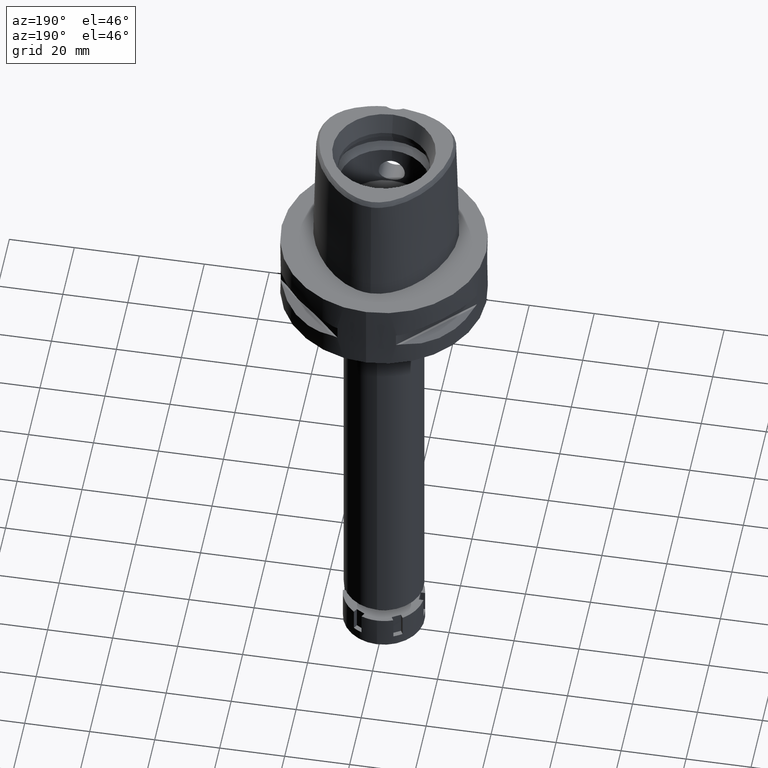
[diagram: clean part render]
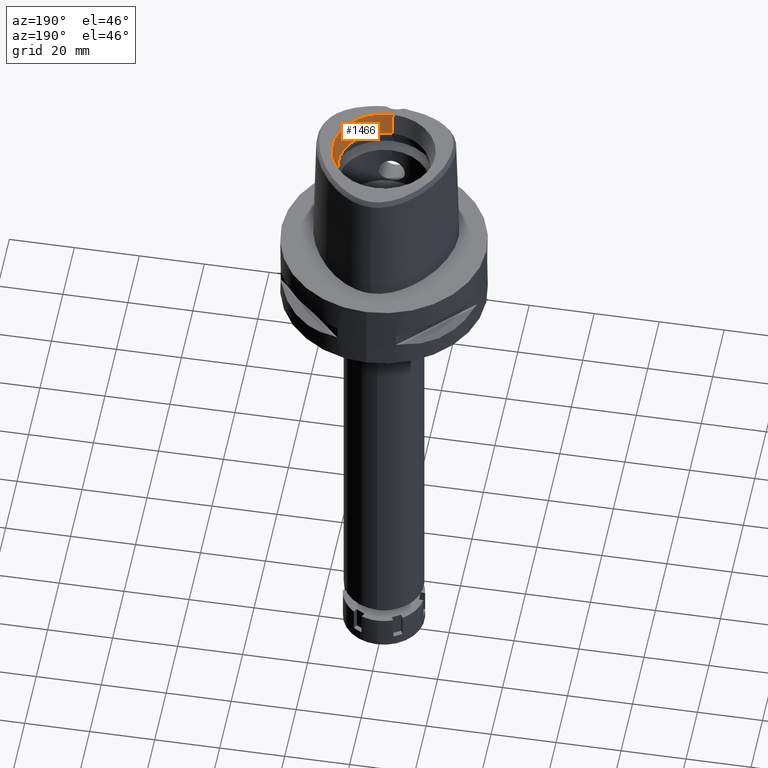
[diagram: same view with one face highlighted and labeled with its STEP entity id]
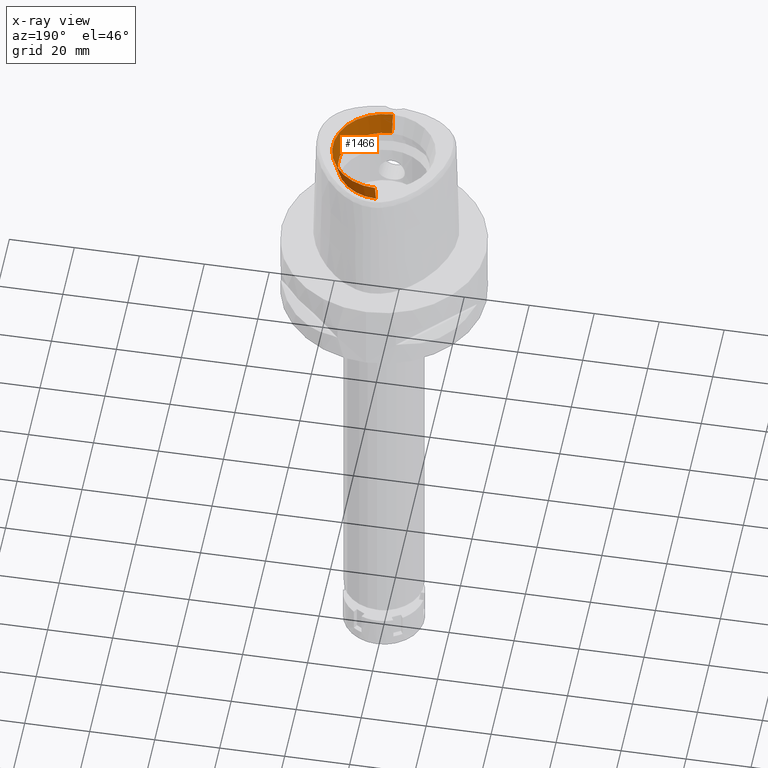
[diagram: x-ray of the same camera — body ghosted, the highlighted face saturated]
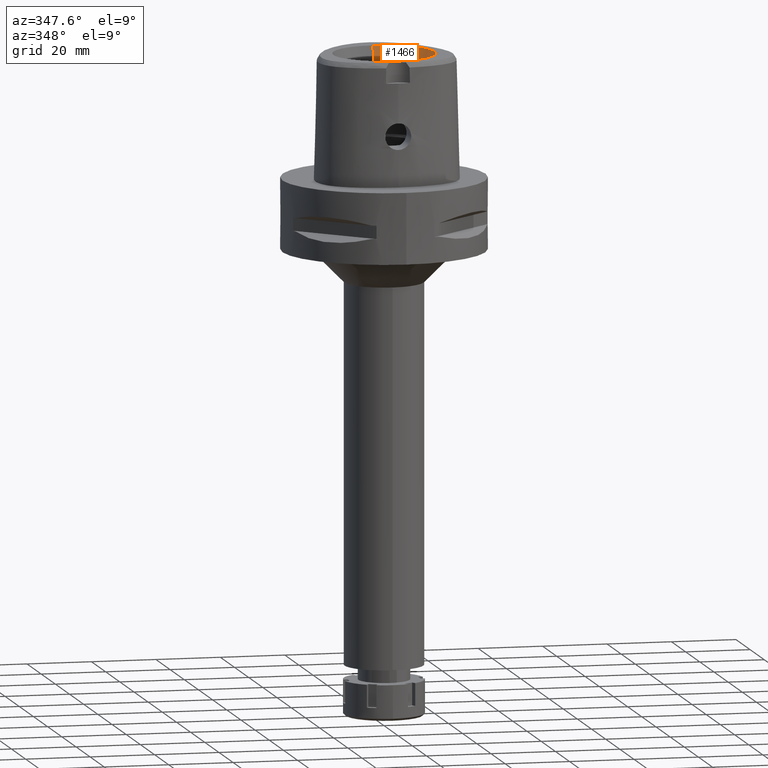
[diagram: same view with one face highlighted and labeled with its STEP entity id]
A machine part, auxiliary view. The second image highlights one B-rep face of the part: STEP entity #1466.
The next image is the same camera in x-ray: the body ghosted, the highlighted face saturated — about 0% of this face is hidden behind the body in this view.
A second angle (auxiliary view) of the same face is appended — the face is thin or edge-on in the first view.
In plain terms, the highlighted conical surface has half-angle 15 deg.
Its self-contained STEP definition (entity closure, byte-faithful):
#234 = DIRECTION ( 'NONE',  ( 0.0000000000000000000, 0.2588190451025869088, 0.9659258262890505486 ) ) ;
#410 = DIRECTION ( 'NONE',  ( 0.0000000000000000000, 0.0000000000000000000, 1.000000000000000000 ) ) ;
#458 = CARTESIAN_POINT ( 'NONE',  ( 0.0000000000000000000, 14.00000000000000000, 31.60000000000000142 ) ) ;
#563 = ORIENTED_EDGE ( 'NONE', *, *, #4878, .F. ) ;
#913 = ORIENTED_EDGE ( 'NONE', *, *, #4130, .T. ) ;
#1117 = CARTESIAN_POINT ( 'NONE',  ( 0.0000000000000000000, -14.00000000000000000, 31.60000000000000142 ) ) ;
#1186 = DIRECTION ( 'NONE',  ( 0.0000000000000000000, -1.000000000000000000, 0.0000000000000000000 ) ) ;
#1310 = VERTEX_POINT ( 'NONE', #2572 ) ;
#1466 = ADVANCED_FACE ( 'NONE', ( #3349 ), #3570, .F. ) ;
#1626 = CARTESIAN_POINT ( 'NONE',  ( 0.0000000000000000000, -14.00000000000000000, 31.60000000000000142 ) ) ;
#1667 = VECTOR ( 'NONE', #234, 1000.000000000000000 ) ;
#1857 = VECTOR ( 'NONE', #2872, 1000.000000000000000 ) ;
#1913 = LINE ( 'NONE', #4012, #1667 ) ;
#2087 = CARTESIAN_POINT ( 'NONE',  ( 0.0000000000000000000, 0.0000000000000000000, 31.60000000000000142 ) ) ;
#2102 = EDGE_CURVE ( 'NONE', #2381, #1310, #1913, .T. ) ;
#2381 = VERTEX_POINT ( 'NONE', #458 ) ;
#2505 = DIRECTION ( 'NONE',  ( 0.0000000000000000000, 0.0000000000000000000, 1.000000000000000000 ) ) ;
#2572 = CARTESIAN_POINT ( 'NONE',  ( 0.0000000000000000000, 15.71487483155999776, 38.00000000000000000 ) ) ;
#2598 = CIRCLE ( 'NONE', #4316, 14.00000000000000000 ) ;
#2872 = DIRECTION ( 'NONE',  ( 0.0000000000000000000, -0.2588190451025869088, 0.9659258262890505486 ) ) ;
#3190 = VERTEX_POINT ( 'NONE', #1117 ) ;
#3323 = DIRECTION ( 'NONE',  ( 0.0000000000000000000, 1.000000000000000000, 0.0000000000000000000 ) ) ;
#3349 = FACE_OUTER_BOUND ( 'NONE', #4811, .T. ) ;
#3369 = DIRECTION ( 'NONE',  ( 0.0000000000000000000, -1.000000000000000000, 0.0000000000000000000 ) ) ;
#3502 = VERTEX_POINT ( 'NONE', #5358 ) ;
#3570 = CONICAL_SURFACE ( 'NONE', #5006, 14.85743741577999977, 0.2617993877991000029 ) ;
#3832 = CARTESIAN_POINT ( 'NONE',  ( 0.0000000000000000000, 0.0000000000000000000, 34.79999999999999716 ) ) ;
#3902 = ORIENTED_EDGE ( 'NONE', *, *, #4171, .T. ) ;
#3938 = CIRCLE ( 'NONE', #4306, 15.71487483155999776 ) ;
#4012 = CARTESIAN_POINT ( 'NONE',  ( 0.0000000000000000000, 14.00000000000000000, 31.60000000000000142 ) ) ;
#4130 = EDGE_CURVE ( 'NONE', #3502, #1310, #3938, .T. ) ;
#4171 = EDGE_CURVE ( 'NONE', #3190, #3502, #4984, .T. ) ;
#4306 = AXIS2_PLACEMENT_3D ( 'NONE', #5042, #2505, #1186 ) ;
#4316 = AXIS2_PLACEMENT_3D ( 'NONE', #2087, #410, #3369 ) ;
#4576 = ORIENTED_EDGE ( 'NONE', *, *, #2102, .F. ) ;
#4811 = EDGE_LOOP ( 'NONE', ( #4576, #563, #3902, #913 ) ) ;
#4878 = EDGE_CURVE ( 'NONE', #3190, #2381, #2598, .T. ) ;
#4984 = LINE ( 'NONE', #1626, #1857 ) ;
#5006 = AXIS2_PLACEMENT_3D ( 'NONE', #3832, #5124, #3323 ) ;
#5042 = CARTESIAN_POINT ( 'NONE',  ( 0.0000000000000000000, 0.0000000000000000000, 38.00000000000000000 ) ) ;
#5124 = DIRECTION ( 'NONE',  ( 0.0000000000000000000, 0.0000000000000000000, 1.000000000000000000 ) ) ;
#5358 = CARTESIAN_POINT ( 'NONE',  ( 0.0000000000000000000, -15.71487483155999776, 38.00000000000000000 ) ) ;